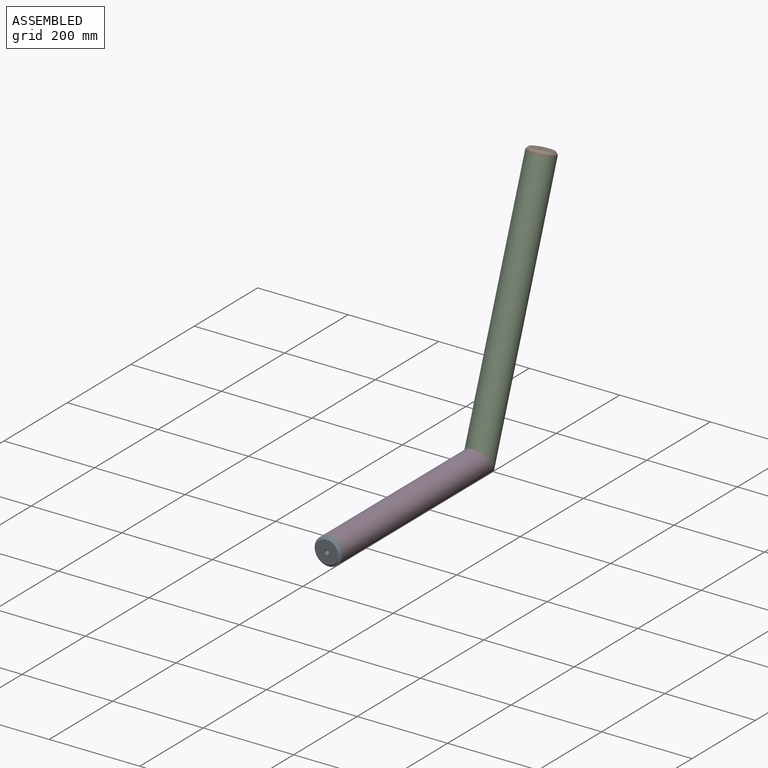
[diagram: assembled view]
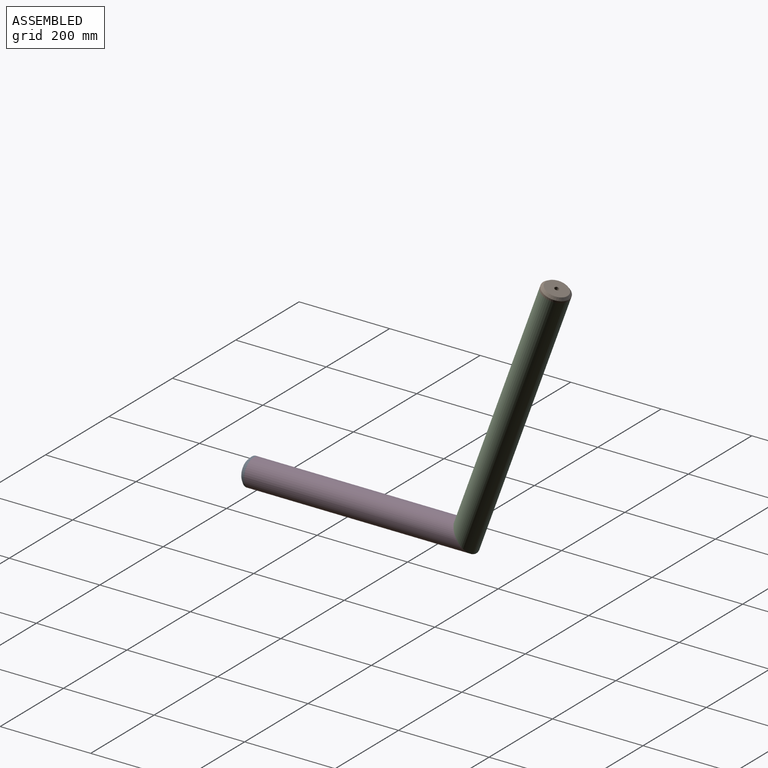
[diagram: assembled view, second angle]
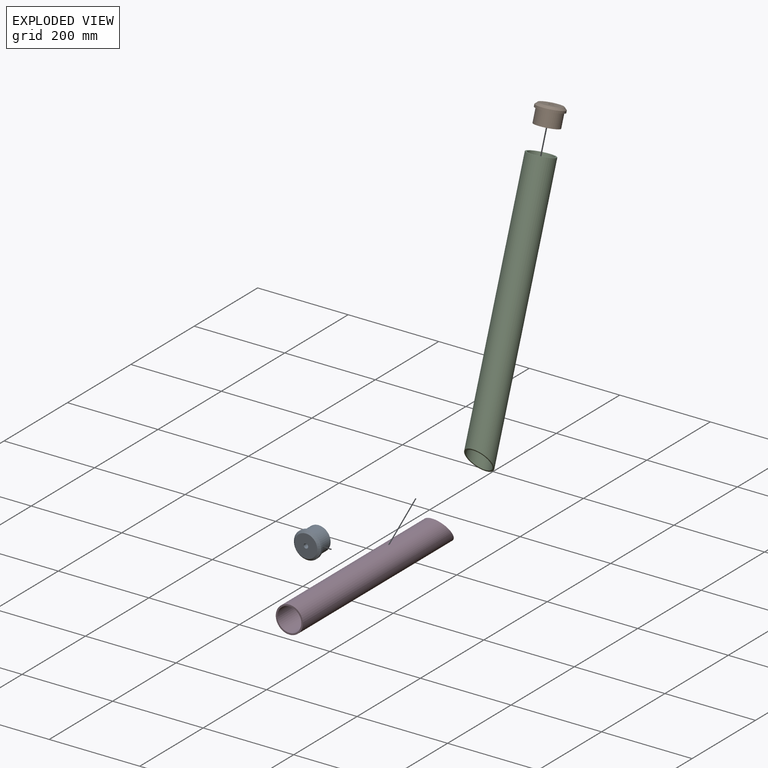
[diagram: exploded view]
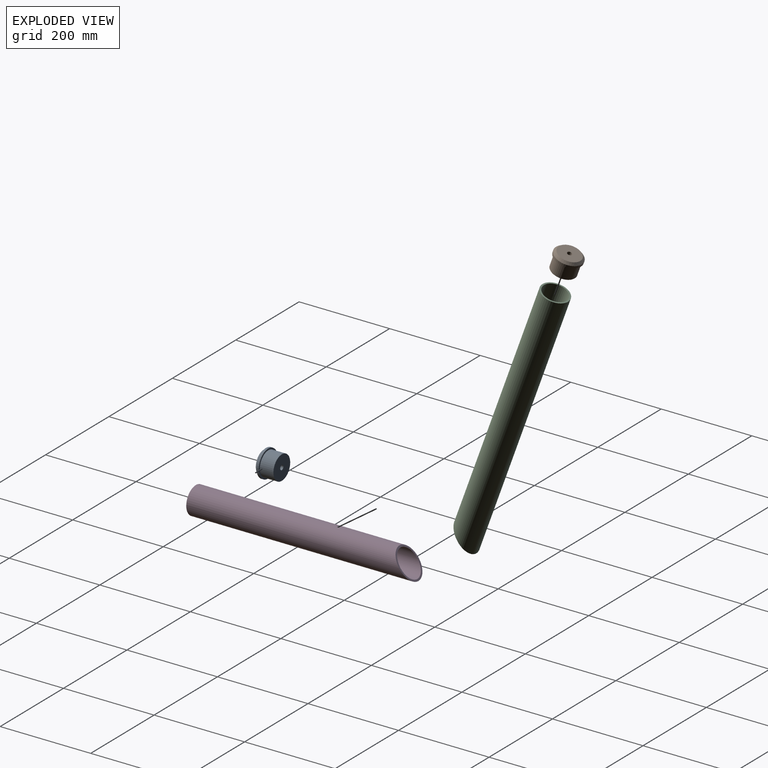
[diagram: exploded view, second angle]
ASSEMBLY  parts=4 mates=3
PART A: 7 faces, bbox 60x40x60 mm
  f0: plane 50x50mm, normal (0,-1,0), area 1885mm2, adj f5,f6
  f1: plane 53x53mm, normal (0,1,0), area 2127.6mm2, adj f2,f6
  f2: cylinder r=26.5mm len=53mm, axis (0,1,0), area 4995.1mm2, adj f1,f3
  f3: plane 60x60mm, normal (0,1,0), area 621.2mm2, adj f2,f4
  f4: cylinder r=30mm len=60mm, axis (0,1,0), area 942.5mm2, adj f3,f5
  f5: cone r=30mm half-angle=45deg, axis (0,1,0), area 1221.8mm2, adj f0,f4
  f6: cylinder r=5mm len=40mm, axis (0,-1,0), area 1256.6mm2, adj f0,f1
PART B: same geometry as A
PART C: 4 faces, bbox 68.8x600.8x68.8 mm
  f0: cylinder r=26.5mm len=589.56mm, axis (0,-1,0), area 95075.1mm2, adj f2,f3
  f1: cylinder r=30mm len=592.01mm, axis (0,-1,0), area 107632.1mm2, adj f2,f3
  f2: plane 60x60mm, normal (0,-1,0), area 621.2mm2, adj f0,f1
  f3: plane 68.84x68.84mm, normal (0,0.82,0.57), area 758.4mm2, adj f0,f1
PART D: 4 faces, bbox 68.8x500.8x68.8 mm
  f0: cylinder r=26.5mm len=489.56mm, axis (0,-1,0), area 78424.6mm2, adj f2,f3
  f1: cylinder r=30mm len=492.01mm, axis (0,-1,0), area 88782.6mm2, adj f2,f3
  f2: plane 60x60mm, normal (0,-1,0), area 621.2mm2, adj f0,f1
  f3: plane 68.84x68.84mm, normal (0,0.82,0.57), area 758.4mm2, adj f0,f1
PLACE A at identity
PLACE B rot(axis=(-1,0,0),110deg) t=(0,666.3,536.57)mm
PLACE C rot(axis=(0,0.57,-0.82),180deg) t=(0,666.3,536.57)mm
PLACE D at identity fixed
MATE planar C.f3 <-> D.f3  axis (0,-0.82,-0.57) through (0,471.01,0)mm
MATE planar D.f3 <-> C.f3  axis (0,0.82,0.57) through (0,471.01,0)mm
MATE revolute C.f0 <-> B.f2  axis (0,0.34,0.94) through (0,666.3,536.57)mm
